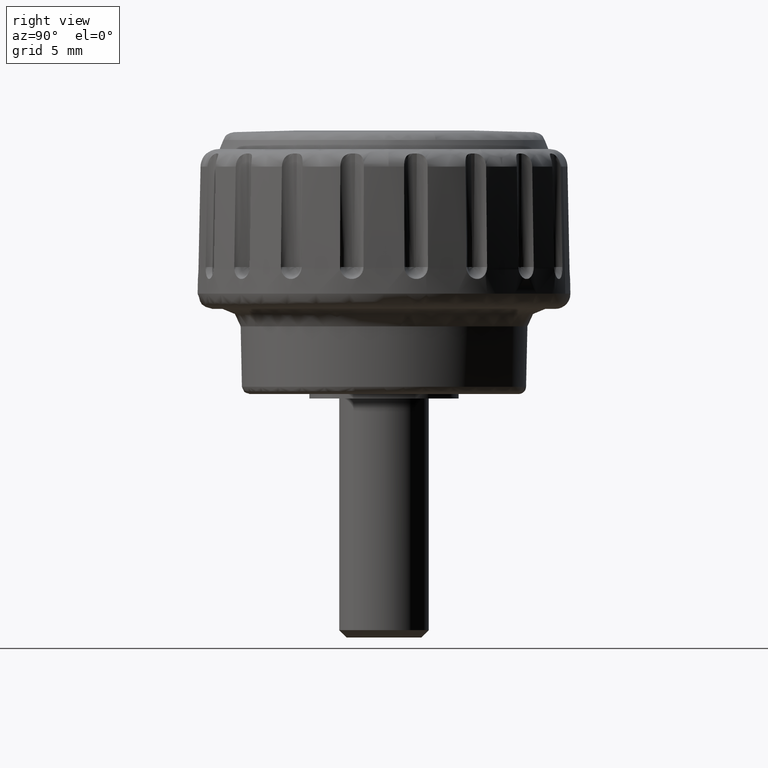
[diagram: clean part render]
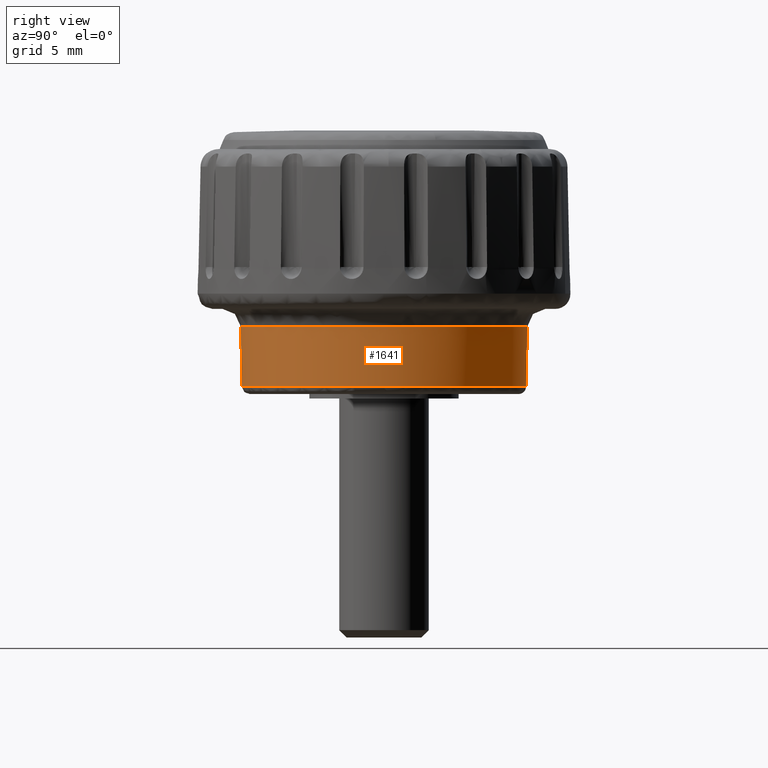
[diagram: same view with one face highlighted and labeled with its STEP entity id]
A machine part, right view. The second image highlights one B-rep face of the part: STEP entity #1641.
In plain terms, the highlighted face is a freeform B-spline surface patch.
Its self-contained STEP definition (entity closure, byte-faithful):
#1472=CARTESIAN_POINT('',(-7.191511462268739,-6.222806553943089,0.684042566438957));
#1473=CARTESIAN_POINT('',(-6.831050233315884,-6.639380817861891,0.684042566438957));
#1474=CARTESIAN_POINT('',(-6.424900472925359,-7.011548504627434,0.684042566438957));
#1475=CARTESIAN_POINT('',(0.586648031702075,-13.436448977552793,0.684042566438957));
#1476=CARTESIAN_POINT('',(7.011548504627434,-6.424900472925359,0.684042566438957));
#1477=CARTESIAN_POINT('',(13.436448977552793,0.586648031702075,0.684042566438957));
#1478=CARTESIAN_POINT('',(6.424900472925359,7.011548504627434,0.684042566438957));
#1479=CARTESIAN_POINT('',(-0.586648031702075,13.436448977552793,0.684042566438957));
#1480=CARTESIAN_POINT('',(-7.011548504627434,6.424900472925359,0.684042566438957));
#1481=CARTESIAN_POINT('',(-7.275691322278028,-6.295647289485845,4.935105517924241));
#1482=CARTESIAN_POINT('',(-6.911010733326759,-6.717097741589029,4.935105517924240));
#1483=CARTESIAN_POINT('',(-6.500106808230823,-7.093621817680554,4.935105517924240));
#1484=CARTESIAN_POINT('',(0.593515009449731,-13.593728625911377,4.935105517924240));
#1485=CARTESIAN_POINT('',(7.093621817680554,-6.500106808230823,4.935105517924240));
#1486=CARTESIAN_POINT('',(13.593728625911377,0.593515009449731,4.935105517924240));
#1487=CARTESIAN_POINT('',(6.500106808230823,7.093621817680554,4.935105517924240));
#1488=CARTESIAN_POINT('',(-0.593515009449731,13.593728625911377,4.935105517924240));
#1489=CARTESIAN_POINT('',(-7.093621817680554,6.500106808230823,4.935105517924240));
#1497=(BOUNDED_SURFACE()B_SPLINE_SURFACE(2,1,((#1472,#1481),(#1473,#1482),(#1474,#1483),(#1475,#1484),(#1476,#1485),(#1477,#1486),(#1478,#1487),(#1479,#1488),(#1480,#1489)),.UNSPECIFIED.,.F.,.F.,.U.)B_SPLINE_SURFACE_WITH_KNOTS((3,2,2,2,3),(2,2),(0.0,1.275297298980206,17.216513536232782,33.157729773485357,49.098946010737933),(0.0,4.252520222065542),.UNSPECIFIED.)GEOMETRIC_REPRESENTATION_ITEM()RATIONAL_B_SPLINE_SURFACE(((0.956886118190660,0.956886118190660),(0.976568542494924,0.976568542494924),(1.0,1.0),(0.707106781186548,0.707106781186548),(1.0,1.0),(0.707106781186548,0.707106781186548),(1.0,1.0),(0.707106781186548,0.707106781186548),(1.0,1.0)))REPRESENTATION_ITEM('')SURFACE());
#1498=CARTESIAN_POINT('',(-0.059624760817412,-9.512489942093554,0.785198364220912));
#1499=VERTEX_POINT('',#1498);
#1500=CARTESIAN_POINT('',(-7.193366943943204,-6.224412489381730,0.785852822770223));
#1501=VERTEX_POINT('',#1500);
#1502=CARTESIAN_POINT('',(-0.059624760817412,-9.512489942093554,0.785198364220912));
#1503=CARTESIAN_POINT('',(-0.481351930728259,-9.509858363862545,0.785201211642709));
#1504=CARTESIAN_POINT('',(-1.176903870777898,-9.459113764000707,0.785214581866627));
#1505=CARTESIAN_POINT('',(-2.193942138933629,-9.271397504390700,0.785255350726121));
#1506=CARTESIAN_POINT('',(-3.310482306741416,-8.951659118002352,0.785321353169511));
#1507=CARTESIAN_POINT('',(-4.354739416793983,-8.487083350502962,0.785414025157574));
#1508=CARTESIAN_POINT('',(-5.365340422635525,-7.874428230703226,0.785534188433286));
#1509=CARTESIAN_POINT('',(-6.260219977690977,-7.201602524033984,0.785664952555686));
#1510=CARTESIAN_POINT('',(-6.876045514514125,-6.591193362884125,0.785782491026866));
#1511=CARTESIAN_POINT('',(-7.193366943943204,-6.224412489381730,0.785852822770223));
#1512=B_SPLINE_CURVE_WITH_KNOTS('',3,(#1502,#1503,#1504,#1505,#1506,#1507,#1508,#1509,#1510,#1511),.UNSPECIFIED.,.F.,.U.,(4,1,1,1,1,1,1,4),(4.024717E-009,1.265205119950130,2.087591785059007,3.099760327552986,4.744521753848485,5.503649187737540,6.642337534999869,8.097324480892448),.UNSPECIFIED.);
#1513=EDGE_CURVE('',#1499,#1501,#1512,.T.);
#1514=ORIENTED_EDGE('',*,*,#1513,.F.);
#1515=CARTESIAN_POINT('',(9.512749480641890,0.0,0.786914354733086));
#1516=VERTEX_POINT('',#1515);
#1517=CARTESIAN_POINT('',(9.512749480641890,0.0,0.786914354733086));
#1518=CARTESIAN_POINT('',(9.512767484228002,-0.371147955784984,0.786844976816834));
#1519=CARTESIAN_POINT('',(9.463584357417844,-1.211123281126877,0.786688281600728));
#1520=CARTESIAN_POINT('',(9.244250993617250,-2.345788047373863,0.786477605632168));
#1521=CARTESIAN_POINT('',(8.845361967765159,-3.573450100511590,0.786250711815336));
#1522=CARTESIAN_POINT('',(8.332363493466680,-4.653189726941021,0.786052209732788));
#1523=CARTESIAN_POINT('',(7.579249081317398,-5.797318488394732,0.785843230692477));
#1524=CARTESIAN_POINT('',(6.780394407539682,-6.712390017172734,0.785677365778705));
#1525=CARTESIAN_POINT('',(5.898375930616338,-7.486976082465928,0.785538301485532));
#1526=CARTESIAN_POINT('',(5.002307122043206,-8.117064518044414,0.785426339021814));
#1527=CARTESIAN_POINT('',(4.089738493520658,-8.610614693996475,0.785340006466927));
#1528=CARTESIAN_POINT('',(2.911658606752606,-9.087901559125703,0.785258438022815));
#1529=CARTESIAN_POINT('',(1.562259556224786,-9.431534759212488,0.785202965568455));
#1530=CARTESIAN_POINT('',(0.467789742901631,-9.515851129443613,0.785194311251957));
#1531=CARTESIAN_POINT('',(-0.059624760817412,-9.512489942093554,0.785198364220912));
#1532=B_SPLINE_CURVE_WITH_KNOTS('',3,(#1517,#1518,#1519,#1520,#1521,#1522,#1523,#1524,#1525,#1526,#1527,#1528,#1529,#1530,#1531),.UNSPECIFIED.,.F.,.U.,(4,1,1,1,1,1,1,1,1,1,1,1,4),(0.000000012542522,1.113446740108639,2.519918830495090,3.457568448137582,4.981244850895116,6.094706182225711,7.559762480859344,8.614612003526784,9.610866389513154,10.841530268325620,11.720574558737381,13.420057428581730,15.002334319282340),.UNSPECIFIED.);
#1533=EDGE_CURVE('',#1516,#1499,#1532,.T.);
#1534=ORIENTED_EDGE('',*,*,#1533,.F.);
#1535=CARTESIAN_POINT('',(0.239056302376872,9.509745252401981,0.786914354403101));
#1536=VERTEX_POINT('',#1535);
#1537=CARTESIAN_POINT('',(0.239056302376872,9.509745252401981,0.786914354403101));
#1538=CARTESIAN_POINT('',(0.698396791442086,9.498219376870308,0.786914354419444));
#1539=CARTESIAN_POINT('',(1.386138951438512,9.430858114122904,0.786914354443919));
#1540=CARTESIAN_POINT('',(2.473739184217927,9.203290175553599,0.786914354482619));
#1541=CARTESIAN_POINT('',(3.424258152200856,8.899957503277753,0.786914354516434));
#1542=CARTESIAN_POINT('',(4.504967487938646,8.404763902640866,0.786914354554906));
#1543=CARTESIAN_POINT('',(5.600681939158708,7.732382979109589,0.786914354593878));
#1544=CARTESIAN_POINT('',(6.571676266983301,6.917257259486543,0.786914354628423));
#1545=CARTESIAN_POINT('',(7.463226480837040,5.940097100809745,0.786914354660165));
#1546=CARTESIAN_POINT('',(8.203149260086180,4.887817740587355,0.786914354686492));
#1547=CARTESIAN_POINT('',(8.870539307262296,3.547159361584480,0.786914354710238));
#1548=CARTESIAN_POINT('',(9.378993154864302,1.914478000486791,0.786914354728317));
#1549=CARTESIAN_POINT('',(9.512863212799196,0.689232899396873,0.786914354733105));
#1550=CARTESIAN_POINT('',(9.512749480641890,0.0,0.786914354733086));
#1551=B_SPLINE_CURVE_WITH_KNOTS('',3,(#1537,#1538,#1539,#1540,#1541,#1542,#1543,#1544,#1545,#1546,#1547,#1548,#1549,#1550),.UNSPECIFIED.,.F.,.U.,(4,1,1,1,1,1,1,1,1,1,1,4),(0.000000012766906,1.378453058958163,2.067679322971511,3.331267962435419,4.365113638913064,5.628696804870224,7.179471489155989,8.155858245319271,9.591757282979565,11.027649605848611,12.635854167710731,14.703532804195079),.UNSPECIFIED.);
#1552=EDGE_CURVE('',#1536,#1516,#1551,.T.);
#1553=ORIENTED_EDGE('',*,*,#1552,.F.);
#1554=CARTESIAN_POINT('',(-7.013426641497079,6.426621089463209,0.786989040111408));
#1555=VERTEX_POINT('',#1554);
#1556=CARTESIAN_POINT('',(-7.013426641497079,6.426621089463209,0.786989040111408));
#1557=CARTESIAN_POINT('',(-6.598927994669058,6.879115508838654,0.786982709317885));
#1558=CARTESIAN_POINT('',(-5.919067806726210,7.490205240139704,0.786973304074193));
#1559=CARTESIAN_POINT('',(-4.914951662999282,8.160772006614497,0.786961144631640));
#1560=CARTESIAN_POINT('',(-4.132224953304448,8.583711314644949,0.786952410921171));
#1561=CARTESIAN_POINT('',(-3.176995635173586,8.989813777030911,0.786942573851922));
#1562=CARTESIAN_POINT('',(-2.199948537689449,9.276250728971245,0.786933474568047));
#1563=CARTESIAN_POINT('',(-1.010449362411552,9.482546400128493,0.786923459825601));
#1564=CARTESIAN_POINT('',(-0.247469682797535,9.522012544274967,0.786917729204855));
#1565=CARTESIAN_POINT('',(0.239056302376872,9.509745252401981,0.786914354403101));
#1566=B_SPLINE_CURVE_WITH_KNOTS('',3,(#1556,#1557,#1558,#1559,#1560,#1561,#1562,#1563,#1564,#1565),.UNSPECIFIED.,.F.,.U.,(4,1,1,1,1,1,1,4),(2.561926E-009,1.840917165930764,2.729639078553154,3.618358732805548,4.507071228369623,5.840151620235698,6.665392562838221,8.125429641166571),.UNSPECIFIED.);
#1567=EDGE_CURVE('',#1555,#1536,#1566,.T.);
#1568=ORIENTED_EDGE('',*,*,#1567,.F.);
#1569=CARTESIAN_POINT('',(-7.091620019300579,6.498272502363019,4.831420639996036));
#1570=VERTEX_POINT('',#1569);
#1571=CARTESIAN_POINT('',(-7.013426641497079,6.426621089463209,0.786989040111408));
#1572=CARTESIAN_POINT('',(-7.091620019300579,6.498272502363019,4.831420639996036));
#1573=QUASI_UNIFORM_CURVE('',1,(#1571,#1572),.UNSPECIFIED.,.F.,.U.);
#1574=EDGE_CURVE('',#1555,#1570,#1573,.T.);
#1575=ORIENTED_EDGE('',*,*,#1574,.T.);
#1576=CARTESIAN_POINT('',(0.670740437602922,9.595245044403225,4.831421001800820));
#1577=VERTEX_POINT('',#1576);
#1578=CARTESIAN_POINT('',(-7.091620019300579,6.498272502363019,4.831420639996036));
#1579=CARTESIAN_POINT('',(-6.741808218839044,6.880081756095108,4.831420654001415));
#1580=CARTESIAN_POINT('',(-6.013407298978639,7.556237461201224,4.831420684292680));
#1581=CARTESIAN_POINT('',(-4.872033001842878,8.326745298936796,4.831420734501053));
#1582=CARTESIAN_POINT('',(-3.801097900573544,8.857815909144517,4.831420783432254));
#1583=CARTESIAN_POINT('',(-2.826180140750778,9.211494172001183,4.831420829208235));
#1584=CARTESIAN_POINT('',(-1.711239076575529,9.491716772712532,4.831420882738459));
#1585=CARTESIAN_POINT('',(-0.545422474785806,9.632043634693320,4.831420940160024));
#1586=CARTESIAN_POINT('',(0.311391483535194,9.620369189473060,4.831420983452258));
#1587=CARTESIAN_POINT('',(0.670740437602922,9.595245044403225,4.831421001800820));
#1588=B_SPLINE_CURVE_WITH_KNOTS('',3,(#1578,#1579,#1580,#1581,#1582,#1583,#1584,#1585,#1586,#1587),.UNSPECIFIED.,.F.,.U.,(4,1,1,1,1,1,1,4),(2.527850E-009,1.553482245657110,2.971884693891324,4.120113484882247,5.133248343630946,6.078848918040455,7.564792440016611,8.645474104605647),.UNSPECIFIED.);
#1589=EDGE_CURVE('',#1570,#1577,#1588,.T.);
#1590=ORIENTED_EDGE('',*,*,#1589,.T.);
#1591=CARTESIAN_POINT('',(9.618660000000000,0.0,4.831421000000000));
#1592=VERTEX_POINT('',#1591);
#1593=CARTESIAN_POINT('',(0.670740437602922,9.595245044403225,4.831421001800820));
#1594=CARTESIAN_POINT('',(1.308367805771534,9.550772810450912,4.831421001672493));
#1595=CARTESIAN_POINT('',(2.332532841075858,9.375353685689271,4.831421001466367));
#1596=CARTESIAN_POINT('',(3.757669746239564,8.886090260444695,4.831421001179561));
#1597=CARTESIAN_POINT('',(4.835649028985245,8.344517525734345,4.831421000962601));
#1598=CARTESIAN_POINT('',(5.741922327699050,7.735549251543096,4.831421000780208));
#1599=CARTESIAN_POINT('',(6.599338058466964,7.030273446364070,4.831421000607642));
#1600=CARTESIAN_POINT('',(7.523721161815472,6.062078961770275,4.831421000421679));
#1601=CARTESIAN_POINT('',(8.320633885966974,4.892359267350392,4.831421000261154));
#1602=CARTESIAN_POINT('',(8.973503960684075,3.555847363090100,4.831421000129758));
#1603=CARTESIAN_POINT('',(9.377461856424224,2.298105253518056,4.831421000048772));
#1604=CARTESIAN_POINT('',(9.583028798344644,1.033941448733601,4.831421000006760));
#1605=CARTESIAN_POINT('',(9.618662559921880,0.319580838290762,4.831421000000392));
#1606=CARTESIAN_POINT('',(9.618660000000000,0.0,4.831421000000000));
#1607=B_SPLINE_CURVE_WITH_KNOTS('',3,(#1593,#1594,#1595,#1596,#1597,#1598,#1599,#1600,#1601,#1602,#1603,#1604,#1605,#1606),.UNSPECIFIED.,.F.,.U.,(4,1,1,1,1,1,1,1,1,1,1,4),(0.000000012365957,1.917503656050339,3.101846818990239,4.511781897790314,5.526935347137254,6.372891370187674,7.839205629873162,9.531130220851434,10.602678688640530,12.294601708002020,13.478946912730320,14.437691242315370),.UNSPECIFIED.);
#1608=EDGE_CURVE('',#1577,#1592,#1607,.T.);
#1609=ORIENTED_EDGE('',*,*,#1608,.T.);
#1610=CARTESIAN_POINT('',(-7.273630347377447,-6.293862700199016,4.830738153974203));
#1611=VERTEX_POINT('',#1610);
#1612=CARTESIAN_POINT('',(9.618660000000000,0.0,4.831421000000000));
#1613=CARTESIAN_POINT('',(9.618585350198206,-1.273479560589606,4.828565640340458));
#1614=CARTESIAN_POINT('',(9.365837459632672,-2.533757524516278,4.828327246551740));
#1615=CARTESIAN_POINT('',(8.874859817075841,-3.708786612246104,4.830633765254829));
#1616=CARTESIAN_POINT('',(8.384332517855482,-4.882737918680093,4.832938168331384));
#1617=CARTESIAN_POINT('',(7.665121023956921,-5.948654127884987,4.828210228088224));
#1618=CARTESIAN_POINT('',(6.758534605255999,-6.843988844756713,4.830104788044783));
#1619=CARTESIAN_POINT('',(4.934390875225952,-8.645493010680664,4.833916834634753));
#1620=CARTESIAN_POINT('',(2.459708460062890,-9.650102732489089,4.823223813100626));
#1621=CARTESIAN_POINT('',(-0.120864731290077,-9.617882082280948,4.830827015901019));
#1622=CARTESIAN_POINT('',(-1.384108841893346,-9.601938716765909,4.828454232901785));
#1623=CARTESIAN_POINT('',(-2.631237549457040,-9.337540123635456,4.828396501940488));
#1624=CARTESIAN_POINT('',(-3.792271052877521,-8.839502753666526,4.830637098603004));
#1625=CARTESIAN_POINT('',(-4.952223781490006,-8.341928993267276,4.832875609554453));
#1626=CARTESIAN_POINT('',(-6.003821139202838,-7.620284289886127,4.828262792235078));
#1627=CARTESIAN_POINT('',(-6.886326272389765,-6.715382433034725,4.830121370434624));
#1628=CARTESIAN_POINT('',(-7.019918932628739,-6.578399381304009,4.830402719966318));
#1629=CARTESIAN_POINT('',(-7.149053298624094,-6.437817166895568,4.830603673662554));
#1630=CARTESIAN_POINT('',(-7.273630347377447,-6.293862700199016,4.830738153974203));
#1631=B_SPLINE_CURVE_WITH_KNOTS('',3,(#1612,#1613,#1614,#1615,#1616,#1617,#1618,#1619,#1620,#1621,#1622,#1623,#1624,#1625,#1626,#1627,#1628,#1629,#1630),.UNSPECIFIED.,.F.,.U.,(4,3,3,3,3,3,4),(0.0,3.820448619010081,7.637392977482048,15.317471760657760,19.077026337747562,22.833081246770728,23.401668723976691),.UNSPECIFIED.);
#1632=EDGE_CURVE('',#1592,#1611,#1631,.T.);
#1633=ORIENTED_EDGE('',*,*,#1632,.T.);
#1634=CARTESIAN_POINT('',(-7.193366943943204,-6.224412489381730,0.785852822770223));
#1635=CARTESIAN_POINT('',(-7.273630347377447,-6.293862700199016,4.830738153974203));
#1636=QUASI_UNIFORM_CURVE('',1,(#1634,#1635),.UNSPECIFIED.,.F.,.U.);
#1637=EDGE_CURVE('',#1501,#1611,#1636,.T.);
#1638=ORIENTED_EDGE('',*,*,#1637,.F.);
#1639=EDGE_LOOP('',(#1514,#1534,#1553,#1568,#1575,#1590,#1609,#1633,#1638));
#1640=FACE_OUTER_BOUND('',#1639,.T.);
#1641=ADVANCED_FACE('',(#1640),#1497,.T.);